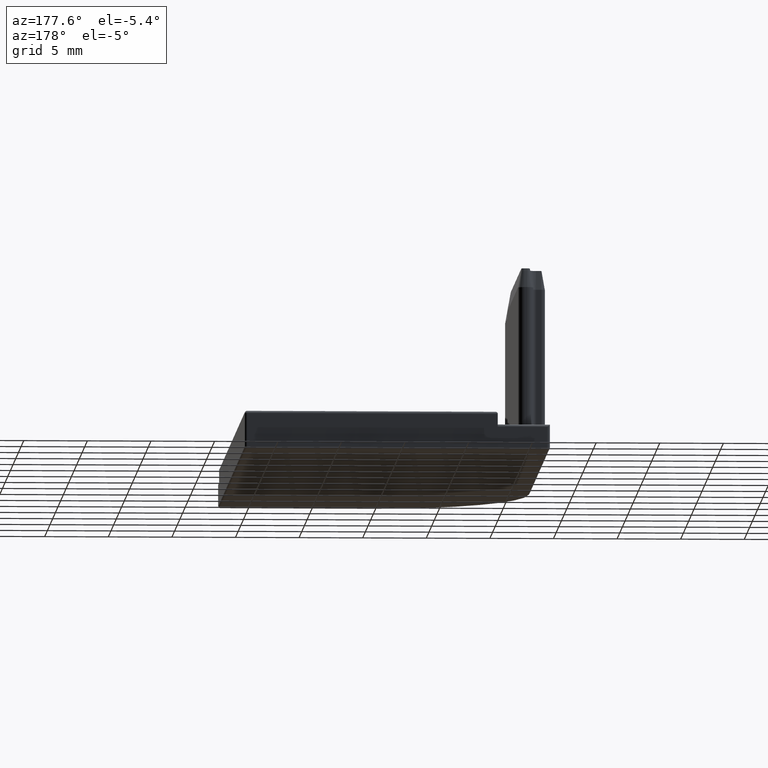
[diagram: clean part render]
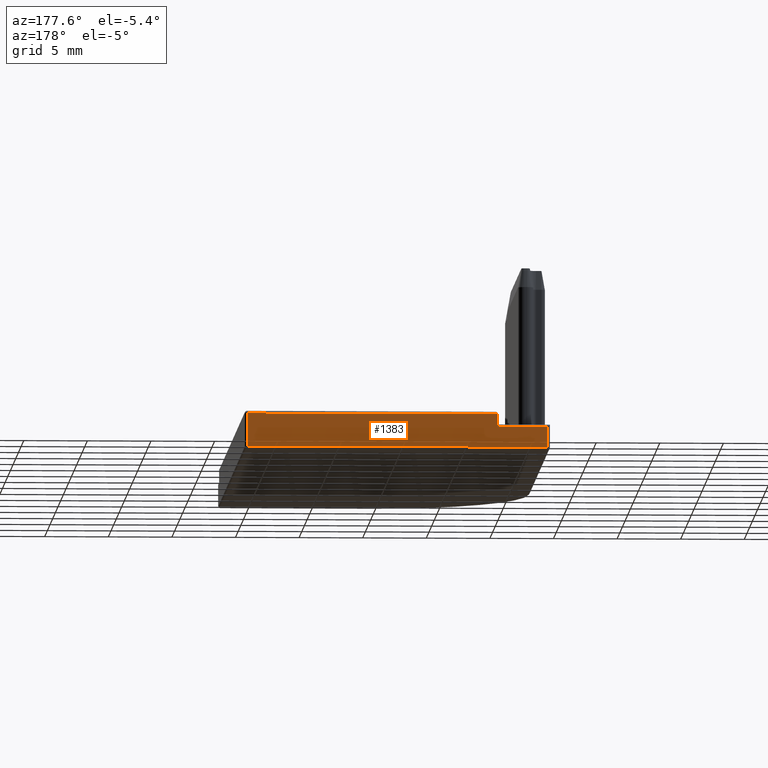
[diagram: same view with one face highlighted and labeled with its STEP entity id]
A machine part, auxiliary view. The second image highlights one B-rep face of the part: STEP entity #1383.
In plain terms, the highlighted planar face has unit normal (0, 1, 0).
Its self-contained STEP definition (entity closure, byte-faithful):
#39=PLANE('',#1547);
#118=FACE_OUTER_BOUND('',#207,.T.);
#207=EDGE_LOOP('',(#1063,#1064,#1065,#1066,#1067,#1068));
#283=LINE('',#2242,#405);
#285=LINE('',#2245,#407);
#290=LINE('',#2256,#412);
#298=LINE('',#2290,#420);
#300=LINE('',#2301,#422);
#306=LINE('',#2316,#428);
#405=VECTOR('',#1785,10.);
#407=VECTOR('',#1789,10.);
#412=VECTOR('',#1802,10.);
#420=VECTOR('',#1828,10.);
#422=VECTOR('',#1842,10.);
#428=VECTOR('',#1860,10.);
#597=VERTEX_POINT('',#2162);
#603=VERTEX_POINT('',#2176);
#610=VERTEX_POINT('',#2195);
#623=VERTEX_POINT('',#2235);
#633=VERTEX_POINT('',#2289);
#636=VERTEX_POINT('',#2299);
#764=EDGE_CURVE('',#603,#610,#283,.T.);
#766=EDGE_CURVE('',#610,#623,#285,.T.);
#772=EDGE_CURVE('',#597,#603,#290,.T.);
#785=EDGE_CURVE('',#633,#597,#298,.T.);
#791=EDGE_CURVE('',#636,#633,#300,.T.);
#799=EDGE_CURVE('',#636,#623,#306,.T.);
#1063=ORIENTED_EDGE('',*,*,#766,.F.);
#1064=ORIENTED_EDGE('',*,*,#764,.F.);
#1065=ORIENTED_EDGE('',*,*,#772,.F.);
#1066=ORIENTED_EDGE('',*,*,#785,.F.);
#1067=ORIENTED_EDGE('',*,*,#791,.F.);
#1068=ORIENTED_EDGE('',*,*,#799,.T.);
#1383=ADVANCED_FACE('',(#118),#39,.T.);
#1547=AXIS2_PLACEMENT_3D('',#2318,#1862,#1863);
#1785=DIRECTION('',(0.,0.,1.));
#1789=DIRECTION('',(-1.,0.,-2.8660359602711E-32));
#1802=DIRECTION('',(1.,0.,0.));
#1828=DIRECTION('',(0.,0.,-1.));
#1842=DIRECTION('',(-1.,0.,0.));
#1860=DIRECTION('',(0.,0.,1.));
#1862=DIRECTION('center_axis',(0.,1.,0.));
#1863=DIRECTION('ref_axis',(0.,0.,1.));
#2162=CARTESIAN_POINT('',(-11.8,25.,0.2));
#2176=CARTESIAN_POINT('',(11.8,25.,0.2));
#2195=CARTESIAN_POINT('',(11.8,25.,2.8));
#2235=CARTESIAN_POINT('',(-7.90000000000001,25.,2.8));
#2242=CARTESIAN_POINT('',(11.8,25.,0.));
#2245=CARTESIAN_POINT('',(-4.70317150249282,25.,2.8));
#2256=CARTESIAN_POINT('',(-5.73721089143153,25.,0.2));
#2289=CARTESIAN_POINT('',(-11.8,25.,1.8));
#2290=CARTESIAN_POINT('',(-11.8,25.,0.));
#2299=CARTESIAN_POINT('',(-7.90000000000001,25.,1.8));
#2301=CARTESIAN_POINT('',(-5.73721089143153,25.,1.8));
#2316=CARTESIAN_POINT('',(-7.90000000000001,25.,2.));
#2318=CARTESIAN_POINT('Origin',(-12.,25.,0.));